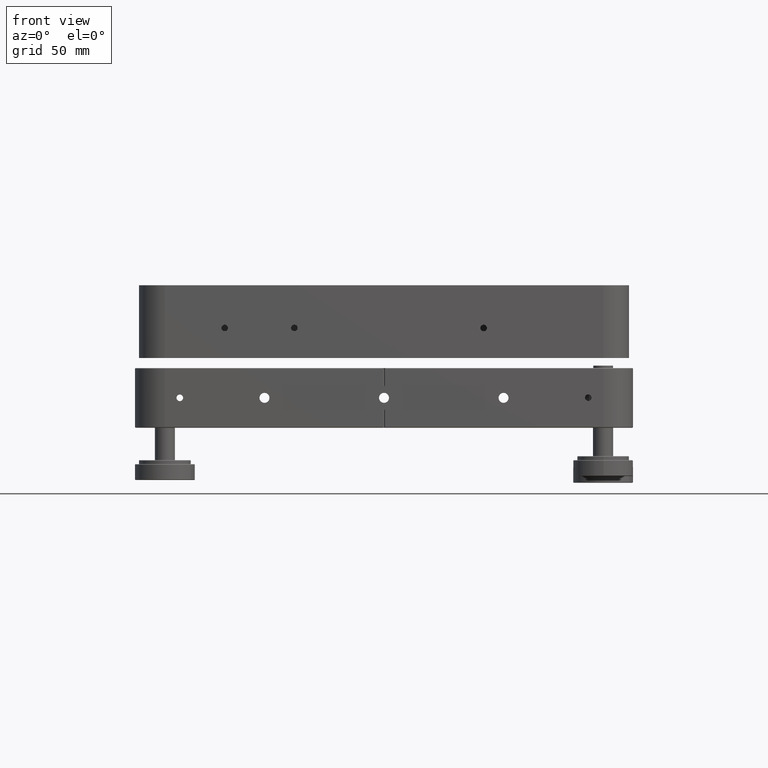
[diagram: clean part render]
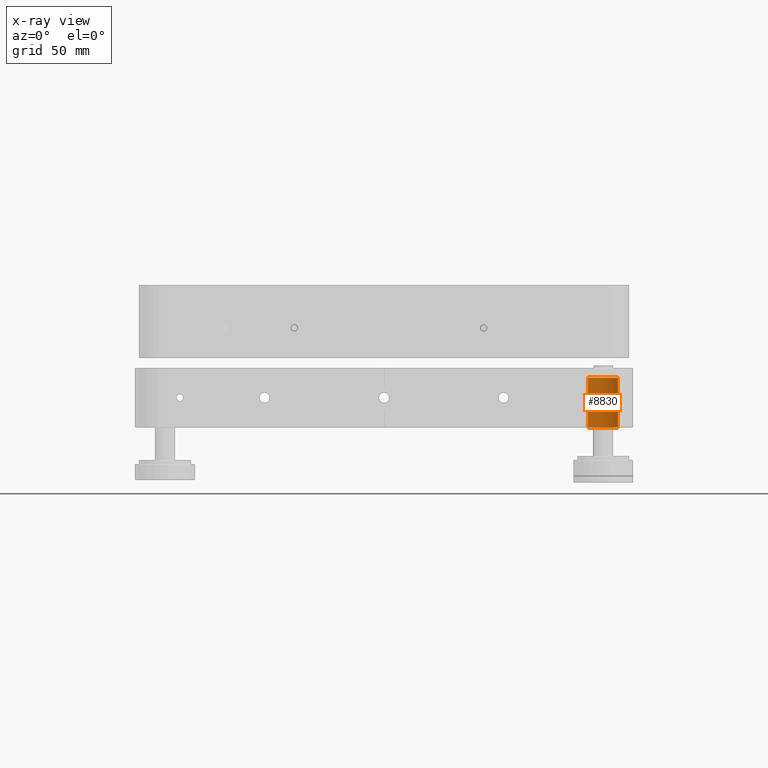
[diagram: x-ray — body ghosted, one internal face saturated and labeled with its STEP entity id]
A machine part, front view, then the same camera in x-ray: the body is ghosted and one INTERNAL B-rep face — a face not visible from any outside direction — is saturated and labeled: STEP entity #8830.
In plain terms, the highlighted cylindrical surface (edge-blend (fillet) strip) has radius 7.5 mm, axis along (0, -0, -1).
Its self-contained STEP definition (entity closure, byte-faithful):
#355 = CIRCLE ( 'NONE', #12983, 7.500000000000013323 ) ;
#456 = DIRECTION ( 'NONE',  ( -1.000000000000000000, 0.000000000000000000, 0.000000000000000000 ) ) ;
#1030 = EDGE_LOOP ( 'NONE', ( #11512, #9962, #2049, #1397 ) ) ;
#1299 = AXIS2_PLACEMENT_3D ( 'NONE', #8083, #2551, #456 ) ;
#1397 = ORIENTED_EDGE ( 'NONE', *, *, #5662, .T. ) ;
#1984 = AXIS2_PLACEMENT_3D ( 'NONE', #11589, #10380, #3970 ) ;
#2049 = ORIENTED_EDGE ( 'NONE', *, *, #5905, .T. ) ;
#2510 = CARTESIAN_POINT ( 'NONE',  ( -7.500000000000012434, 235.0000000000000284, 15.00000000000000000 ) ) ;
#2551 = DIRECTION ( 'NONE',  ( 0.000000000000000000, -0.000000000000000000, -1.000000000000000000 ) ) ;
#2610 = LINE ( 'NONE', #5768, #6100 ) ;
#2858 = DIRECTION ( 'NONE',  ( -0.000000000000000000, 0.000000000000000000, 1.000000000000000000 ) ) ;
#3970 = DIRECTION ( 'NONE',  ( 2.312964634635740492E-16, -1.000000000000000000, 0.000000000000000000 ) ) ;
#3994 = CARTESIAN_POINT ( 'NONE',  ( -15.00000000000002665, 235.0000000000000284, 9.999999999999998224 ) ) ;
#4654 = DIRECTION ( 'NONE',  ( 0.000000000000000000, -0.000000000000000000, -1.000000000000000000 ) ) ;
#4909 = CYLINDRICAL_SURFACE ( 'NONE', #1299, 7.500000000000013323 ) ;
#5188 = CIRCLE ( 'NONE', #1984, 7.500000000000007105 ) ;
#5662 = EDGE_CURVE ( 'NONE', #6101, #7937, #5188, .T. ) ;
#5768 = CARTESIAN_POINT ( 'NONE',  ( -22.50000000000003908, 235.0000000000000284, 15.00000000000000000 ) ) ;
#5801 = LINE ( 'NONE', #2510, #8303 ) ;
#5905 = EDGE_CURVE ( 'NONE', #12361, #6101, #2610, .T. ) ;
#6100 = VECTOR ( 'NONE', #12157, 1000.000000000000000 ) ;
#6101 = VERTEX_POINT ( 'NONE', #12858 ) ;
#7937 = VERTEX_POINT ( 'NONE', #9989 ) ;
#8083 = CARTESIAN_POINT ( 'NONE',  ( -15.00000000000002665, 235.0000000000000284, 15.00000000000000000 ) ) ;
#8216 = EDGE_CURVE ( 'NONE', #8429, #12361, #355, .T. ) ;
#8268 = CARTESIAN_POINT ( 'NONE',  ( -22.50000000000003908, 235.0000000000000284, 9.999999999999998224 ) ) ;
#8303 = VECTOR ( 'NONE', #4654, 1000.000000000000000 ) ;
#8429 = VERTEX_POINT ( 'NONE', #9183 ) ;
#8830 = ADVANCED_FACE ( 'NONE', ( #12318 ), #4909, .F. ) ;
#9183 = CARTESIAN_POINT ( 'NONE',  ( -7.500000000000012434, 235.0000000000000284, 9.999999999999998224 ) ) ;
#9962 = ORIENTED_EDGE ( 'NONE', *, *, #8216, .T. ) ;
#9989 = CARTESIAN_POINT ( 'NONE',  ( -7.500000000000012434, 235.0000000000000284, -15.00000000000000000 ) ) ;
#10380 = DIRECTION ( 'NONE',  ( -0.000000000000000000, -0.000000000000000000, -1.000000000000000000 ) ) ;
#11512 = ORIENTED_EDGE ( 'NONE', *, *, #12590, .F. ) ;
#11589 = CARTESIAN_POINT ( 'NONE',  ( -15.00000000000002665, 235.0000000000000284, -15.00000000000000000 ) ) ;
#11755 = DIRECTION ( 'NONE',  ( -1.000000000000000000, 0.000000000000000000, 0.000000000000000000 ) ) ;
#12157 = DIRECTION ( 'NONE',  ( 0.000000000000000000, -0.000000000000000000, -1.000000000000000000 ) ) ;
#12318 = FACE_OUTER_BOUND ( 'NONE', #1030, .T. ) ;
#12361 = VERTEX_POINT ( 'NONE', #8268 ) ;
#12590 = EDGE_CURVE ( 'NONE', #8429, #7937, #5801, .T. ) ;
#12858 = CARTESIAN_POINT ( 'NONE',  ( -22.50000000000003908, 235.0000000000000284, -15.00000000000000000 ) ) ;
#12983 = AXIS2_PLACEMENT_3D ( 'NONE', #3994, #2858, #11755 ) ;